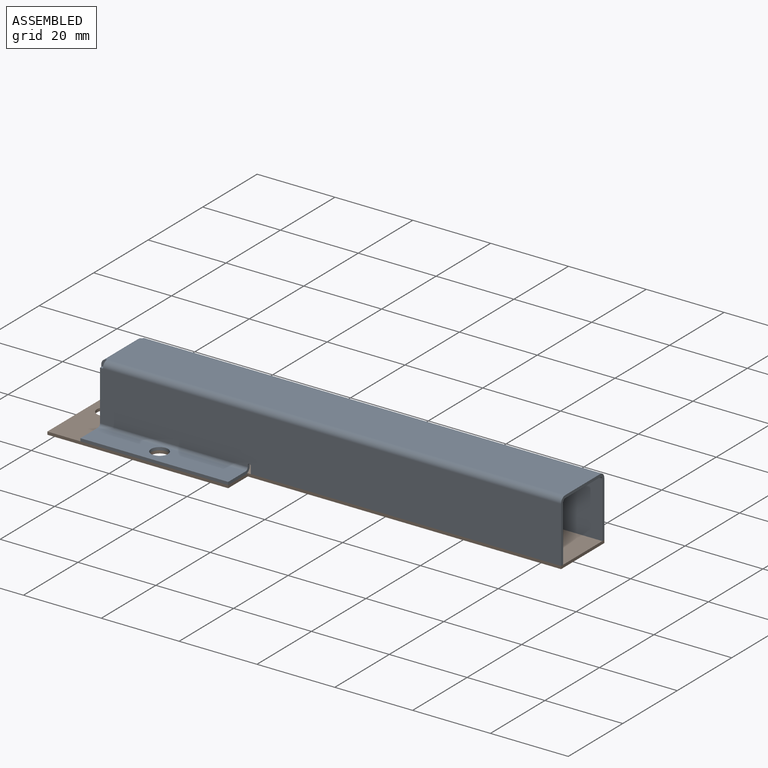
[diagram: assembled view]
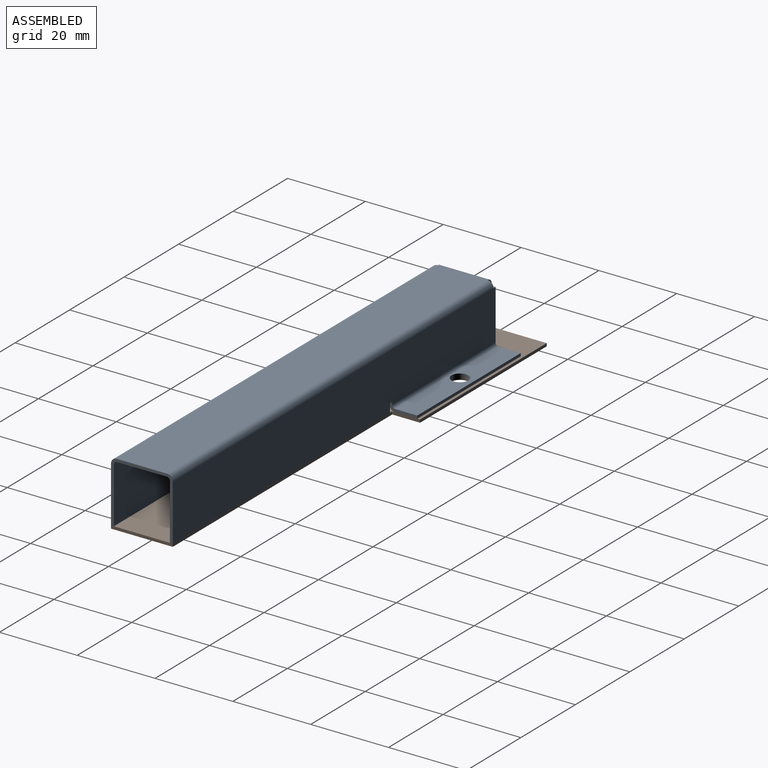
[diagram: assembled view, second angle]
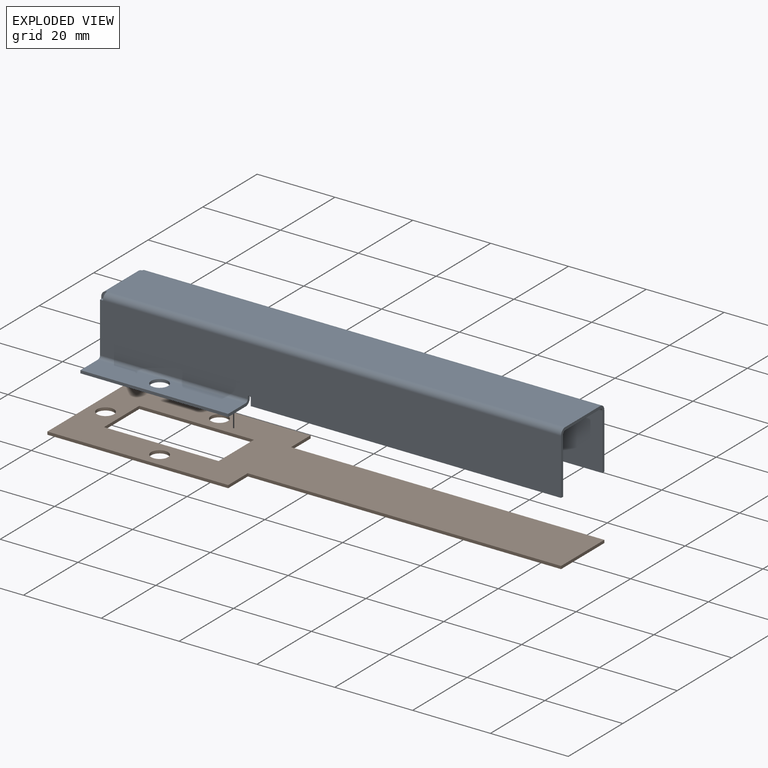
[diagram: exploded view]
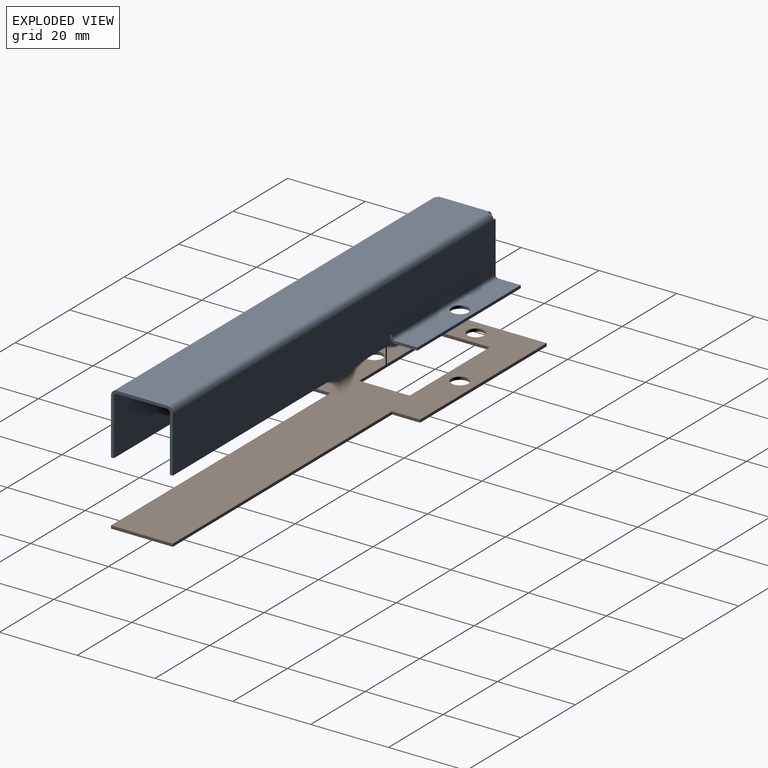
[diagram: exploded view, second angle]
ASSEMBLY  parts=2 mates=3
PART A: 58 faces, bbox 119.2x29.5x15.9 mm
  f0: plane 79.74x0.74mm, normal (0,0,-1), area 58.7mm2, adj f1,f4,f5,f7
  f1: plane 14.38x0.74mm, normal (1,0,0), area 10.6mm2, adj f0,f4,f5,f45
  f2: plane 0.76x0.74mm, normal (0,0,1), area 0.6mm2, adj f3,f4,f5,f44
  f3: plane 12.88x0.74mm, normal (-1,0,0), area 9.5mm2, adj f2,f4,f5,f55
  f4: plane 118.49x14.38mm, normal (0,-1,0), area 1644.9mm2, adj f0,f1,f2,f3,f6,f7,f8,f46
  f5: plane 118.49x14.38mm, normal (0,1,0), area 1644.9mm2, adj f0,f1,f2,f3,f6,f7,f8,f47
  f6: plane 0.74x0.38mm, normal (1,0,0), area 0.3mm2, adj f4,f5,f8,f54
  f7: plane 1.88x0.74mm, normal (-1,0,0), area 1.4mm2, adj f0,f4,f5,f8
  f8: cylinder r=0.39mm len=0.78mm, axis (0,1,0), area 0.9mm2, adj f4,f5,f6,f7
  f9: plane 12.88x0.74mm, normal (1,0,0), area 9.5mm2, adj f10,f11,f32,f45
  f10: plane 117.73x12.88mm, normal (0,0,1), area 1516.1mm2, adj f9,f33,f42,f46
  f11: plane 117.73x12.88mm, normal (0,0,-1), area 1516.1mm2, adj f9,f34,f43,f47
  f12: plane 0.76x0.74mm, normal (0,0,1), area 0.6mm2, adj f14,f15,f17,f31
  f13: plane 79.74x0.74mm, normal (0,0,-1), area 58.7mm2, adj f14,f15,f16,f20
  f14: plane 118.49x14.38mm, normal (0,1,0), area 1644.9mm2, adj f12,f13,f16,f17,f18,f19,f20,f30
  f15: plane 118.49x14.38mm, normal (0,-1,0), area 1644.9mm2, adj f12,f13,f16,f17,f18,f19,f20,f29
  f16: plane 14.38x0.74mm, normal (1,0,0), area 10.6mm2, adj f13,f14,f15,f32
  f17: plane 12.88x0.74mm, normal (-1,0,0), area 9.5mm2, adj f12,f14,f15,f27
  f18: plane 0.74x0.38mm, normal (1,0,0), area 0.3mm2, adj f14,f15,f19,f28
  f19: cylinder r=0.39mm len=0.78mm, axis (0,-1,0), area 0.9mm2, adj f14,f15,f18,f20
  f20: plane 1.88x0.74mm, normal (-1,0,0), area 1.4mm2, adj f13,f14,f15,f19
  f21: plane 37.97x0.74mm, normal (0,1,0), area 28mm2, adj f22,f24,f25,f26
  f22: plane 5.69x0.74mm, normal (-1,0,0), area 4.2mm2, adj f21,f25,f26,f27
  f23: cylinder r=2.18mm len=4.37mm, axis (0,0,1), area 10.1mm2, adj f25,f26
  f24: plane 5.69x0.74mm, normal (1,0,0), area 4.2mm2, adj f21,f25,f26,f28
  f25: plane 37.97x5.69mm, normal (0,0,1), area 201.1mm2, adj f21,f22,f23,f24,f30
  f26: plane 37.97x5.69mm, normal (0,0,-1), area 201.1mm2, adj f21,f22,f23,f24,f29
  f27: plane 1.5x1.5mm, normal (-1,0,0), area 1.3mm2, adj f17,f22,f29,f30
  f28: plane 1.5x1.5mm, normal (1,0,0), area 1.3mm2, adj f18,f24,f29,f30
  f29: cylinder r=1.5mm len=37.97mm, axis (-1,0,0), area 89.4mm2, adj f15,f26,f27,f28
  f30: cylinder r=0.76mm len=37.97mm, axis (-1,0,0), area 45.5mm2, adj f14,f25,f27,f28
  f31: plane 1.5x1.5mm, normal (-1,0,0), area 1.3mm2, adj f12,f33,f34,f41
  f32: plane 1.5x1.5mm, normal (1,0,0), area 1.3mm2, adj f9,f16,f33,f34
  f33: cylinder r=1.5mm len=117.73mm, axis (-1,0,0), area 277.1mm2, adj f10,f14,f31,f32
  f34: cylinder r=0.76mm len=117.73mm, axis (-1,0,0), area 140.9mm2, adj f11,f15,f31,f32
  f35: plane 12.88x0.74mm, normal (0,0,-1), area 9.5mm2, adj f36,f37,f38,f39
  f36: plane 14.38x0.74mm, normal (0,-1,0), area 10.6mm2, adj f35,f38,f39,f40
  f37: plane 14.38x0.74mm, normal (0,1,0), area 10.6mm2, adj f35,f38,f39,f41
  f38: plane 14.38x12.88mm, normal (-1,0,0), area 185.1mm2, adj f35,f36,f37,f42
  f39: plane 14.38x12.88mm, normal (1,0,0), area 185.1mm2, adj f35,f36,f37,f43
  f40: plane 1.5x1.5mm, normal (0,-1,0), area 1.3mm2, adj f36,f42,f43,f44
  f41: plane 1.5x1.5mm, normal (0,1,0), area 1.3mm2, adj f31,f37,f42,f43
  f42: cylinder r=1.5mm len=12.88mm, axis (0,-1,0), area 30.3mm2, adj f10,f38,f40,f41
  f43: cylinder r=0.76mm len=12.88mm, axis (0,-1,0), area 15.4mm2, adj f11,f39,f40,f41
  f44: plane 1.5x1.5mm, normal (-1,0,0), area 1.3mm2, adj f2,f40,f46,f47
  f45: plane 1.5x1.5mm, normal (1,0,0), area 1.3mm2, adj f1,f9,f46,f47
  f46: cylinder r=1.5mm len=117.73mm, axis (-1,0,0), area 277.1mm2, adj f4,f10,f44,f45
  f47: cylinder r=0.76mm len=117.73mm, axis (-1,0,0), area 140.9mm2, adj f5,f11,f44,f45
  f48: plane 37.97x0.74mm, normal (0,-1,0), area 28mm2, adj f49,f51,f52,f53
  f49: plane 6.43x0.74mm, normal (1,0,0), area 4.7mm2, adj f48,f52,f53,f54
  f50: cylinder r=2.18mm len=4.37mm, axis (0,0,1), area 10.1mm2, adj f52,f53
  f51: plane 6.43x0.74mm, normal (-1,0,0), area 4.7mm2, adj f48,f52,f53,f55
  f52: plane 37.97x6.43mm, normal (0,0,1), area 229mm2, adj f48,f49,f50,f51,f57
  f53: plane 37.97x6.43mm, normal (0,0,-1), area 229mm2, adj f48,f49,f50,f51,f56
  f54: plane 1.5x1.5mm, normal (1,0,0), area 1.3mm2, adj f6,f49,f56,f57
  f55: plane 1.5x1.5mm, normal (-1,0,0), area 1.3mm2, adj f3,f51,f56,f57
  f56: cylinder r=1.5mm len=37.97mm, axis (1,0,0), area 89.4mm2, adj f5,f53,f54,f55
  f57: cylinder r=0.76mm len=37.97mm, axis (1,0,0), area 45.5mm2, adj f4,f52,f54,f55
PART B: 17 faces, bbox 127x30.2x0.7 mm
  f0: plane 12.95x0.74mm, normal (-1,0,0), area 9.5mm2, adj f1,f11,f12,f13
  f1: plane 29.46x0.74mm, normal (0,1,0), area 21.7mm2, adj f0,f2,f12,f13
  f2: plane 12.95x0.74mm, normal (1,0,0), area 9.5mm2, adj f1,f11,f12,f13
  f3: plane 46.48x0.74mm, normal (0,-1,0), area 34.2mm2, adj f4,f10,f12,f13
  f4: plane 7.18x0.74mm, normal (1,0,0), area 5.3mm2, adj f3,f5,f12,f13
  f5: plane 80.52x0.74mm, normal (0,-1,0), area 59.3mm2, adj f4,f6,f12,f13
  f6: plane 15.88x0.74mm, normal (1,0,0), area 11.7mm2, adj f5,f7,f12,f13
  f7: plane 80.52x0.74mm, normal (0,1,0), area 59.3mm2, adj f6,f8,f12,f13
  f8: plane 7.18x0.74mm, normal (1,0,0), area 5.3mm2, adj f7,f9,f12,f13
  f9: plane 46.48x0.74mm, normal (0,1,0), area 34.2mm2, adj f8,f10,f12,f13
  f10: plane 30.23x0.74mm, normal (-1,0,0), area 22.3mm2, adj f3,f9,f12,f13
  f11: plane 29.46x0.74mm, normal (0,-1,0), area 21.7mm2, adj f0,f2,f12,f13
  f12: plane 127x30.23mm, normal (0,0,1), area 2256.5mm2, adj f0,f1,f2,f3,f4,f5,f6,f7
  f13: plane 127x30.23mm, normal (0,0,-1), area 2256.5mm2, adj f0,f1,f2,f3,f4,f5,f6,f7
  f14: cylinder r=2.18mm len=4.37mm, axis (0,0,1), area 10.1mm2, adj f12,f13
  f15: cylinder r=2.18mm len=4.37mm, axis (0,0,1), area 10.1mm2, adj f12,f13
  f16: cylinder r=2.18mm len=4.37mm, axis (0,0,1), area 10.1mm2, adj f12,f13
PLACE A t=(67.7,0.46,0)mm
PLACE B t=(-36.06,0,-0.74)mm
MATE planar A.f14 <-> B.f7  axis (0,1,0) through (9.87,7.94,7.42)mm
MATE planar A.f9 <-> B.f6  axis (1,0,0) through (67.7,0,15.51)mm
MATE planar A.f0 <-> B.f12  axis (0,0,-1) through (27.83,-7.57,0)mm
